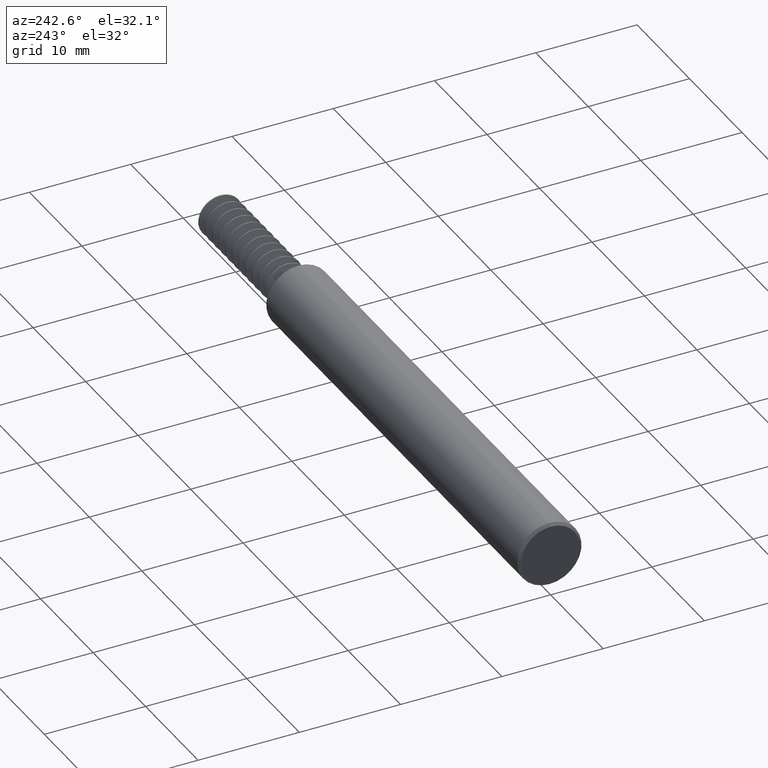
[diagram: clean part render]
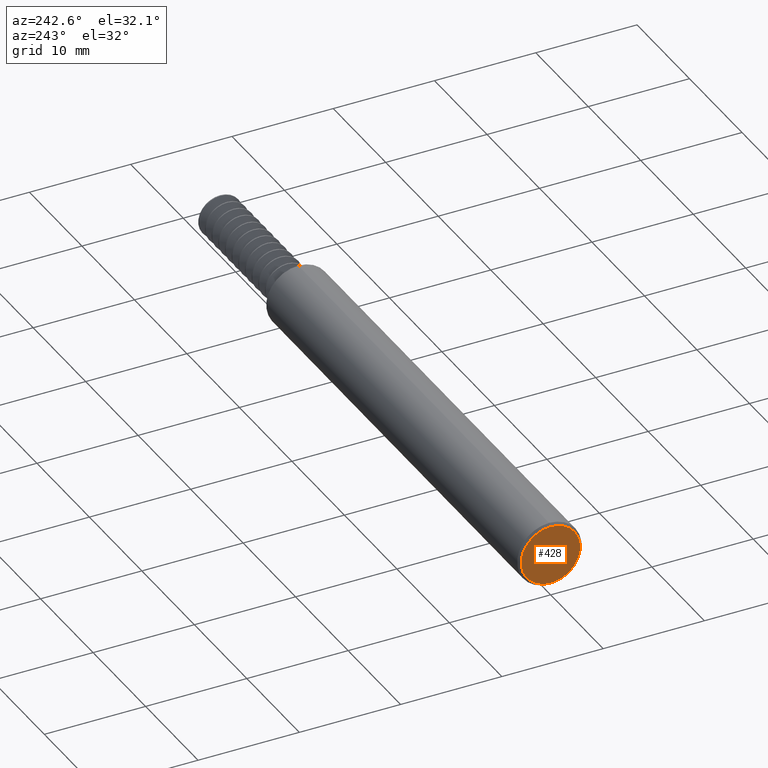
[diagram: same view with one face highlighted and labeled with its STEP entity id]
A machine part, auxiliary view. The second image highlights one B-rep face of the part: STEP entity #428.
In plain terms, the highlighted planar face has unit normal (1, 0, 0).
Its self-contained STEP definition (entity closure, byte-faithful):
#145 = VERTEX_POINT ( 'NONE', #839 ) ;
#255 = CARTESIAN_POINT ( 'NONE',  ( 0.000000000000000000, 0.000000000000000000, 0.000000000000000000 ) ) ;
#428 = ADVANCED_FACE ( 'NONE', ( #1181 ), #544, .F. ) ;
#531 = EDGE_CURVE ( 'NONE', #145, #2480, #2237, .T. ) ;
#538 = EDGE_LOOP ( 'NONE', ( #1413, #2423 ) ) ;
#544 = PLANE ( 'NONE',  #2405 ) ;
#588 = CARTESIAN_POINT ( 'NONE',  ( 0.000000000000000000, 0.000000000000000000, 0.000000000000000000 ) ) ;
#839 = CARTESIAN_POINT ( 'NONE',  ( 0.000000000000000000, 0.000000000000000000, -0.1148500000000005489 ) ) ;
#937 = CIRCLE ( 'NONE', #1401, 0.1148500000000005489 ) ;
#980 = DIRECTION ( 'NONE',  ( -1.000000000000000000, -0.000000000000000000, -0.000000000000000000 ) ) ;
#1181 = FACE_OUTER_BOUND ( 'NONE', #538, .T. ) ;
#1235 = DIRECTION ( 'NONE',  ( -1.000000000000000000, -0.000000000000000000, -0.000000000000000000 ) ) ;
#1401 = AXIS2_PLACEMENT_3D ( 'NONE', #2341, #980, #2542 ) ;
#1413 = ORIENTED_EDGE ( 'NONE', *, *, #531, .T. ) ;
#1774 = AXIS2_PLACEMENT_3D ( 'NONE', #255, #1235, #1824 ) ;
#1824 = DIRECTION ( 'NONE',  ( 0.000000000000000000, 0.000000000000000000, -1.000000000000000000 ) ) ;
#2117 = DIRECTION ( 'NONE',  ( 0.000000000000000000, 0.000000000000000000, -1.000000000000000000 ) ) ;
#2237 = CIRCLE ( 'NONE', #1774, 0.1148500000000005489 ) ;
#2327 = DIRECTION ( 'NONE',  ( 1.000000000000000000, 0.000000000000000000, 0.000000000000000000 ) ) ;
#2341 = CARTESIAN_POINT ( 'NONE',  ( 0.000000000000000000, 0.000000000000000000, 0.000000000000000000 ) ) ;
#2381 = CARTESIAN_POINT ( 'NONE',  ( 0.000000000000000000, 1.467739188778106286E-17, 0.1148500000000005489 ) ) ;
#2396 = EDGE_CURVE ( 'NONE', #2480, #145, #937, .T. ) ;
#2405 = AXIS2_PLACEMENT_3D ( 'NONE', #588, #2327, #2117 ) ;
#2423 = ORIENTED_EDGE ( 'NONE', *, *, #2396, .T. ) ;
#2480 = VERTEX_POINT ( 'NONE', #2381 ) ;
#2542 = DIRECTION ( 'NONE',  ( 0.000000000000000000, 0.000000000000000000, -1.000000000000000000 ) ) ;